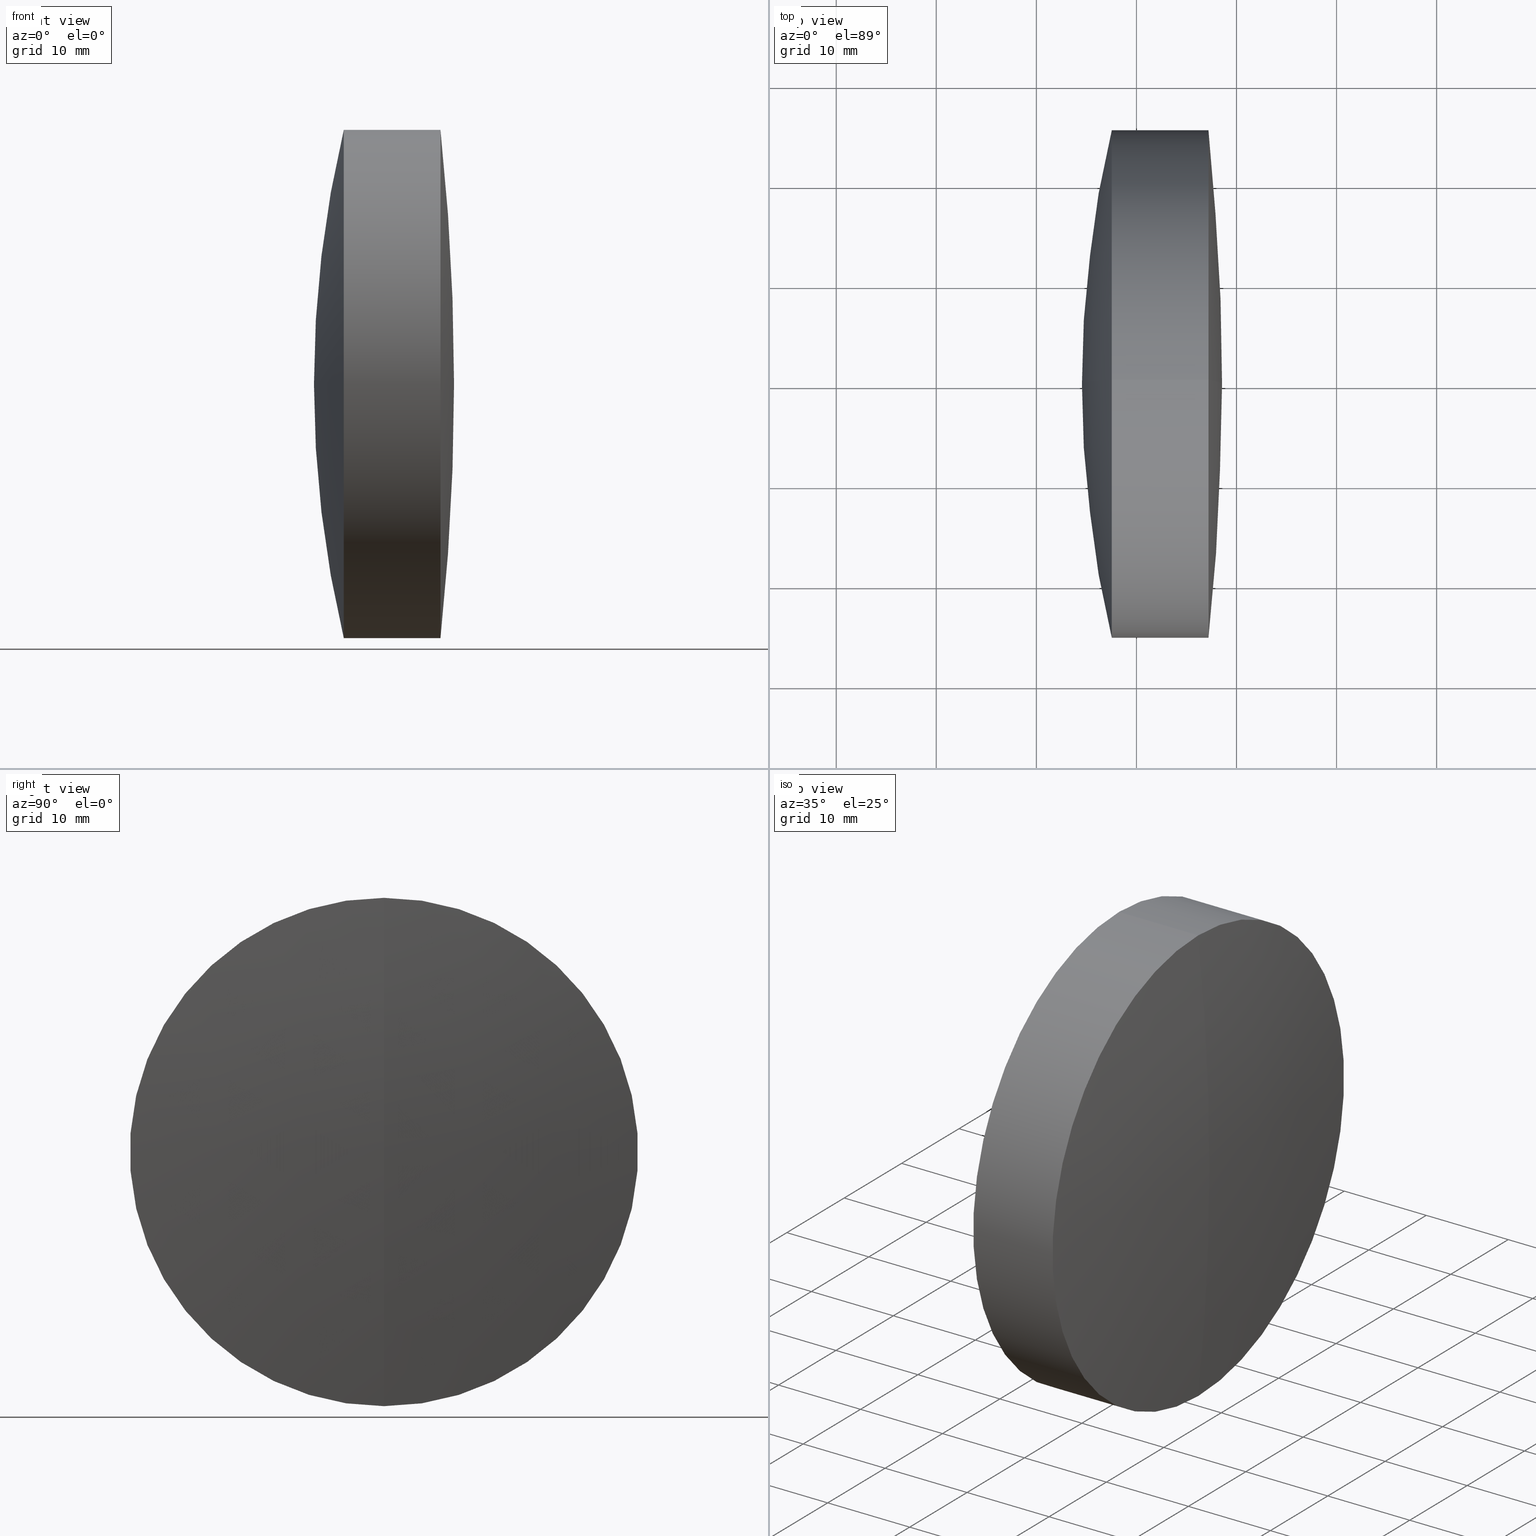
[diagram: canonical four-view strip — front | top / right | iso, engineering-drawing reading convention]
A machine part, canonical four-view strip (front | top / right | iso — engineering-drawing reading convention). The complete STEP part file that produces these views, byte-faithful:
ISO-10303-21;
HEADER;
FILE_DESCRIPTION (( 'STEP AP214' ),
    '1' );
FILE_NAME ('145088.STEP',
    '2019-05-24T07:16:58',
    ( '' ),
    ( '' ),
    'SwSTEP 2.0',
    'SolidWorks 2016',
    '' );
FILE_SCHEMA (( 'AUTOMOTIVE_DESIGN' ));
ENDSEC;

DATA;
#1 = FILL_AREA_STYLE_COLOUR ( '', #106 ) ;
#2 = EDGE_CURVE ( 'NONE', #138, #72, #207, .T. ) ;
#3 =( NAMED_UNIT ( * ) SI_UNIT ( $, .STERADIAN. ) SOLID_ANGLE_UNIT ( ) );
#4 = STYLED_ITEM ( 'NONE', ( #212 ), #173 ) ;
#5 = EDGE_LOOP ( 'NONE', ( #232, #291, #267, #167 ) ) ;
#6 = SPHERICAL_SURFACE ( 'NONE', #252, 80.70000000000001700 ) ;
#7 = DIRECTION ( 'NONE',  ( 0.0000000000000000000, 0.0000000000000000000, 1.000000000000000000 ) ) ;
#8 = PRESENTATION_LAYER_ASSIGNMENT (  '', '', ( #296 ) ) ;
#9 = CLOSED_SHELL ( 'NONE', ( #206, #253, #335, #148, #83, #275 ) ) ;
#10 = PRESENTATION_STYLE_ASSIGNMENT (( #145 ) ) ;
#11 = ORIENTED_EDGE ( 'NONE', *, *, #113, .F. ) ;
#12 = ADVANCED_FACE ( 'NONE', ( #281 ), #338, .T. ) ;
#13 = ORIENTED_EDGE ( 'NONE', *, *, #343, .F. ) ;
#14 = CARTESIAN_POINT ( 'NONE',  ( 265.8574619542142200, 0.0000000000000000000, 2.168404344971008900E-016 ) ) ;
#15 = CARTESIAN_POINT ( 'NONE',  ( 265.8574619542142200, 0.0000000000000000000, 2.168404344971008900E-016 ) ) ;
#16 = EDGE_CURVE ( 'NONE', #259, #156, #198, .T. ) ;
#17 = EDGE_LOOP ( 'NONE', ( #120, #334, #248 ) ) ;
#18 =( NAMED_UNIT ( * ) PLANE_ANGLE_UNIT ( ) SI_UNIT ( $, .RADIAN. ) );
#19 = DIRECTION ( 'NONE',  ( 0.0000000000000000000, 0.0000000000000000000, 1.000000000000000000 ) ) ;
#20 = DIRECTION ( 'NONE',  ( 0.0000000000000000000, 0.0000000000000000000, 1.000000000000000000 ) ) ;
#21 =( GEOMETRIC_REPRESENTATION_CONTEXT ( 3 ) GLOBAL_UNCERTAINTY_ASSIGNED_CONTEXT ( ( #301 ) ) GLOBAL_UNIT_ASSIGNED_CONTEXT ( ( #295, #18, #97 ) ) REPRESENTATION_CONTEXT ( 'NONE', 'WORKASPACE' ) );
#22 = CLOSED_SHELL ( 'NONE', ( #303, #280, #333, #230, #12, #144 ) ) ;
#23 = DIRECTION ( 'NONE',  ( -1.000000000000000000, -0.0000000000000000000, -0.0000000000000000000 ) ) ;
#24 = SURFACE_SIDE_STYLE ('',( #25 ) ) ;
#25 = SURFACE_STYLE_FILL_AREA ( #197 ) ;
#26 = AXIS2_PLACEMENT_3D ( 'NONE', #111, #84, #236 ) ;
#27 =( NAMED_UNIT ( * ) SI_UNIT ( $, .STERADIAN. ) SOLID_ANGLE_UNIT ( ) );
#28 = MECHANICAL_DESIGN_GEOMETRIC_PRESENTATION_REPRESENTATION (  '', ( #296 ), #21 ) ;
#29 =( NAMED_UNIT ( * ) PLANE_ANGLE_UNIT ( ) SI_UNIT ( $, .RADIAN. ) );
#30 = ORIENTED_EDGE ( 'NONE', *, *, #16, .T. ) ;
#31 = SURFACE_STYLE_FILL_AREA ( #184 ) ;
#32 = CARTESIAN_POINT ( 'NONE',  ( 348.5574619542142000, 0.0000000000000000000, 1.460391307983218500E-014 ) ) ;
#33 = FILL_AREA_STYLE_COLOUR ( '', #52 ) ;
#34 = EDGE_LOOP ( 'NONE', ( #342, #299, #287 ) ) ;
#35 = SPHERICAL_SURFACE ( 'NONE', #187, 80.70000000000001700 ) ;
#36 = AXIS2_PLACEMENT_3D ( 'NONE', #14, #37, #217 ) ;
#37 = DIRECTION ( 'NONE',  ( 0.0000000000000000000, 1.000000000000000000, 0.0000000000000000000 ) ) ;
#38 = ORIENTED_EDGE ( 'NONE', *, *, #215, .T. ) ;
#39 = DIRECTION ( 'NONE',  ( 0.0000000000000000000, 0.0000000000000000000, 1.000000000000000000 ) ) ;
#40 = UNCERTAINTY_MEASURE_WITH_UNIT (LENGTH_MEASURE( 1.000000000000000100E-005 ), #135, 'distance_accuracy_value', 'NONE');
#41 = CARTESIAN_POINT ( 'NONE',  ( 265.8574619542142200, 0.0000000000000000000, 2.168404344971008900E-016 ) ) ;
#42 = SURFACE_STYLE_FILL_AREA ( #254 ) ;
#43 = DIRECTION ( 'NONE',  ( 0.0000000000000000000, -1.000000000000000000, 0.0000000000000000000 ) ) ;
#44 =( GEOMETRIC_REPRESENTATION_CONTEXT ( 3 ) GLOBAL_UNCERTAINTY_ASSIGNED_CONTEXT ( ( #40 ) ) GLOBAL_UNIT_ASSIGNED_CONTEXT ( ( #135, #328, #3 ) ) REPRESENTATION_CONTEXT ( 'NONE', 'WORKASPACE' ) );
#45 = CARTESIAN_POINT ( 'NONE',  ( 110.0574619542142300, 0.0000000000000000000, 0.0000000000000000000 ) ) ;
#46 = DIRECTION ( 'NONE',  ( 0.0000000000000000000, -1.224646799147353500E-016, 1.000000000000000000 ) ) ;
#47 = ORIENTED_EDGE ( 'NONE', *, *, #163, .T. ) ;
#48 = PRESENTATION_LAYER_ASSIGNMENT (  '', '', ( #305 ) ) ;
#49 = PRODUCT_CONTEXT ( 'NONE', #274, 'mechanical' ) ;
#50 = CIRCLE ( 'NONE', #180, 25.39999999999994900 ) ;
#51 = DIRECTION ( 'NONE',  ( -1.000000000000000000, -0.0000000000000000000, -0.0000000000000000000 ) ) ;
#52 = COLOUR_RGB ( '',1.000000000000000000, 1.000000000000000000, 1.000000000000000000 ) ;
#53 = PRESENTATION_LAYER_ASSIGNMENT (  '', '', ( #4 ) ) ;
#54 = DIRECTION ( 'NONE',  ( 0.0000000000000000000, 0.0000000000000000000, 1.000000000000000000 ) ) ;
#55 = AXIS2_PLACEMENT_3D ( 'NONE', #347, #324, #190 ) ;
#56 = CARTESIAN_POINT ( 'NONE',  ( -0.5519199926577972300, 0.0000000000000000000, 0.0000000000000000000 ) ) ;
#57 = ORIENTED_EDGE ( 'NONE', *, *, #199, .F. ) ;
#58 = DIRECTION ( 'NONE',  ( 0.0000000000000000000, -1.000000000000000000, 0.0000000000000000000 ) ) ;
#59 = CARTESIAN_POINT ( 'NONE',  ( 110.0574619542142300, 0.0000000000000000000, 0.0000000000000000000 ) ) ;
#60 = CARTESIAN_POINT ( 'NONE',  ( 342.4559606340186500, 0.0000000000000000000, 25.39999999999999500 ) ) ;
#61 = CIRCLE ( 'NONE', #168, 109.7000000000000300 ) ;
#62 = ORIENTED_EDGE ( 'NONE', *, *, #2, .F. ) ;
#63 = CARTESIAN_POINT ( 'NONE',  ( 110.0574619542142300, 0.0000000000000000000, 0.0000000000000000000 ) ) ;
#64 = DIRECTION ( 'NONE',  ( 0.0000000000000000000, -1.224646799147353200E-016, 1.000000000000000000 ) ) ;
#65 = EDGE_LOOP ( 'NONE', ( #38, #151, #62, #219 ) ) ;
#66 = CIRCLE ( 'NONE', #157, 25.40000000000002700 ) ;
#67 = DIRECTION ( 'NONE',  ( 0.0000000000000000000, 1.000000000000000000, 0.0000000000000000000 ) ) ;
#68 = CARTESIAN_POINT ( 'NONE',  ( 337.5385320495342400, 3.110602869834276900E-015, -25.40000000000000600 ) ) ;
#69 = DIRECTION ( 'NONE',  ( 0.0000000000000000000, 0.0000000000000000000, -1.000000000000000000 ) ) ;
#70 = AXIS2_PLACEMENT_3D ( 'NONE', #161, #297, #243 ) ;
#71 = DIRECTION ( 'NONE',  ( 0.0000000000000000000, 0.0000000000000000000, 1.000000000000000000 ) ) ;
#72 = VERTEX_POINT ( 'NONE', #132 ) ;
#73 = CIRCLE ( 'NONE', #75, 80.70000000000001700 ) ;
#74 =( GEOMETRIC_REPRESENTATION_CONTEXT ( 3 ) GLOBAL_UNCERTAINTY_ASSIGNED_CONTEXT ( ( #240 ) ) GLOBAL_UNIT_ASSIGNED_CONTEXT ( ( #105, #194, #27 ) ) REPRESENTATION_CONTEXT ( 'NONE', 'WORKASPACE' ) );
#75 = AXIS2_PLACEMENT_3D ( 'NONE', #15, #318, #216 ) ;
#76 = EDGE_LOOP ( 'NONE', ( #307, #277, #223 ) ) ;
#77 = FACE_OUTER_BOUND ( 'NONE', #304, .T. ) ;
#78 = CYLINDRICAL_SURFACE ( 'NONE', #276, 25.39999999999999500 ) ;
#79 = ORIENTED_EDGE ( 'NONE', *, *, #298, .T. ) ;
#80 = MECHANICAL_DESIGN_GEOMETRIC_PRESENTATION_REPRESENTATION (  '', ( #305 ), #95 ) ;
#81 = ORIENTED_EDGE ( 'NONE', *, *, #189, .F. ) ;
#82 = VECTOR ( 'NONE', #150, 1000.000000000000000 ) ;
#83 = ADVANCED_FACE ( 'NONE', ( #345 ), #238, .T. ) ;
#84 = DIRECTION ( 'NONE',  ( -1.000000000000000000, -0.0000000000000000000, -0.0000000000000000000 ) ) ;
#85 = DIRECTION ( 'NONE',  ( -1.000000000000000000, -0.0000000000000000000, -0.0000000000000000000 ) ) ;
#86 = VECTOR ( 'NONE', #51, 1000.000000000000000 ) ;
#87 = VERTEX_POINT ( 'NONE', #32 ) ;
#88 = CYLINDRICAL_SURFACE ( 'NONE', #203, 25.39999999999998800 ) ;
#89 = AXIS2_PLACEMENT_3D ( 'NONE', #292, #43, #69 ) ;
#90 = DIRECTION ( 'NONE',  ( 0.0000000000000000000, 0.0000000000000000000, 1.000000000000000000 ) ) ;
#91 = CARTESIAN_POINT ( 'NONE',  ( 347.2010682353029000, 0.0000000000000000000, 25.39999999999994900 ) ) ;
#92 = DIRECTION ( 'NONE',  ( 0.0000000000000000000, 0.0000000000000000000, 1.000000000000000000 ) ) ;
#93 = EDGE_LOOP ( 'NONE', ( #255, #79, #118 ) ) ;
#94 = PRESENTATION_STYLE_ASSIGNMENT (( #100 ) ) ;
#95 =( GEOMETRIC_REPRESENTATION_CONTEXT ( 3 ) GLOBAL_UNCERTAINTY_ASSIGNED_CONTEXT ( ( #205 ) ) GLOBAL_UNIT_ASSIGNED_CONTEXT ( ( #202, #29, #231 ) ) REPRESENTATION_CONTEXT ( 'NONE', 'WORKASPACE' ) );
#96 = DIRECTION ( 'NONE',  ( -1.000000000000000000, -0.0000000000000000000, -0.0000000000000000000 ) ) ;
#97 =( NAMED_UNIT ( * ) SI_UNIT ( $, .STERADIAN. ) SOLID_ANGLE_UNIT ( ) );
#98 = ORIENTED_EDGE ( 'NONE', *, *, #133, .F. ) ;
#99 = COLOUR_RGB ( '',1.000000000000000000, 1.000000000000000000, 1.000000000000000000 ) ;
#100 = SURFACE_STYLE_USAGE ( .BOTH. , #103 ) ;
#101 = PRODUCT_DEFINITION_FORMATION_WITH_SPECIFIED_SOURCE ( '�κ�', '', #332, .NOT_KNOWN. ) ;
#102 = DIRECTION ( 'NONE',  ( -0.0000000000000000000, 1.000000000000000000, 1.224646799147353200E-016 ) ) ;
#103 = SURFACE_SIDE_STYLE ('',( #31 ) ) ;
#104 = AXIS2_PLACEMENT_3D ( 'NONE', #166, #234, #172 ) ;
#105 =( LENGTH_UNIT ( ) NAMED_UNIT ( * ) SI_UNIT ( .MILLI., .METRE. ) );
#106 = COLOUR_RGB ( '',1.000000000000000000, 1.000000000000000000, 1.000000000000000000 ) ;
#107 = DIRECTION ( 'NONE',  ( 0.0000000000000000000, -1.224646799147353200E-016, 1.000000000000000000 ) ) ;
#108 = EDGE_CURVE ( 'NONE', #251, #321, #186, .T. ) ;
#109 = MANIFOLD_SOLID_BREP ( '��ת3', #9 ) ;
#110 = APPLICATION_PROTOCOL_DEFINITION ( 'draft international standard', 'automotive_design', 1998, #225 ) ;
#111 = CARTESIAN_POINT ( 'NONE',  ( 124.5233095260452400, 0.0000000000000000000, 0.0000000000000000000 ) ) ;
#112 = ORIENTED_EDGE ( 'NONE', *, *, #183, .T. ) ;
#113 = EDGE_CURVE ( 'NONE', #72, #138, #66, .T. ) ;
#114 = FACE_OUTER_BOUND ( 'NONE', #34, .T. ) ;
#115 = EDGE_LOOP ( 'NONE', ( #200, #294, #182, #175 ) ) ;
#116 = SPHERICAL_SURFACE ( 'NONE', #289, 109.7000000000000300 ) ;
#117 = EDGE_CURVE ( 'NONE', #156, #331, #228, .T. ) ;
#118 = ORIENTED_EDGE ( 'NONE', *, *, #279, .T. ) ;
#119 = CARTESIAN_POINT ( 'NONE',  ( 124.5233095260452400, 3.110602869834276500E-015, -25.39999999999999500 ) ) ;
#120 = ORIENTED_EDGE ( 'NONE', *, *, #247, .F. ) ;
#121 = SURFACE_SIDE_STYLE ('',( #42 ) ) ;
#122 = DIRECTION ( 'NONE',  ( 0.0000000000000000000, 1.000000000000000000, 0.0000000000000000000 ) ) ;
#123 = CARTESIAN_POINT ( 'NONE',  ( 347.2010682353029000, 3.110602869834273700E-015, -25.39999999999994900 ) ) ;
#124 = ORIENTED_EDGE ( 'NONE', *, *, #183, .F. ) ;
#125 = FACE_OUTER_BOUND ( 'NONE', #65, .T. ) ;
#126 = CARTESIAN_POINT ( 'NONE',  ( 265.8574619542142200, 0.0000000000000000000, 2.168404344971008900E-016 ) ) ;
#127 = CARTESIAN_POINT ( 'NONE',  ( 124.5233095260452400, 0.0000000000000000000, 0.0000000000000000000 ) ) ;
#128 = DIRECTION ( 'NONE',  ( 0.0000000000000000000, 0.0000000000000000000, 1.000000000000000000 ) ) ;
#129 = AXIS2_PLACEMENT_3D ( 'NONE', #45, #67, #71 ) ;
#130 = ORIENTED_EDGE ( 'NONE', *, *, #189, .T. ) ;
#131 = LINE ( 'NONE', #258, #82 ) ;
#132 = CARTESIAN_POINT ( 'NONE',  ( 342.4559606340186500, 3.110602869834278400E-015, -25.40000000000000900 ) ) ;
#133 = EDGE_CURVE ( 'NONE', #259, #251, #73, .T. ) ;
#134 = MECHANICAL_DESIGN_GEOMETRIC_PRESENTATION_REPRESENTATION (  '', ( #4 ), #44 ) ;
#135 =( LENGTH_UNIT ( ) NAMED_UNIT ( * ) SI_UNIT ( .MILLI., .METRE. ) );
#136 = SURFACE_STYLE_USAGE ( .BOTH. , #24 ) ;
#137 = DIRECTION ( 'NONE',  ( 1.000000000000000000, 0.0000000000000000000, 0.0000000000000000000 ) ) ;
#138 = VERTEX_POINT ( 'NONE', #309 ) ;
#139 = FILL_AREA_STYLE_COLOUR ( '', #99 ) ;
#140 = APPLICATION_PROTOCOL_DEFINITION ( 'draft international standard', 'automotive_design', 1998, #274 ) ;
#141 = LINE ( 'NONE', #302, #86 ) ;
#142 = EDGE_LOOP ( 'NONE', ( #170, #273, #314 ) ) ;
#143 = AXIS2_PLACEMENT_3D ( 'NONE', #153, #341, #256 ) ;
#144 = ADVANCED_FACE ( 'NONE', ( #77 ), #6, .T. ) ;
#145 = SURFACE_STYLE_USAGE ( .BOTH. , #121 ) ;
#146 = VERTEX_POINT ( 'NONE', #155 ) ;
#147 = VECTOR ( 'NONE', #85, 1000.000000000000000 ) ;
#148 = ADVANCED_FACE ( 'NONE', ( #165 ), #260, .F. ) ;
#149 = AXIS2_PLACEMENT_3D ( 'NONE', #246, #7, #137 ) ;
#150 = DIRECTION ( 'NONE',  ( -1.000000000000000000, -0.0000000000000000000, -0.0000000000000000000 ) ) ;
#151 = ORIENTED_EDGE ( 'NONE', *, *, #343, .T. ) ;
#152 = VECTOR ( 'NONE', #239, 1000.000000000000000 ) ;
#153 = CARTESIAN_POINT ( 'NONE',  ( 110.0574619542142300, 0.0000000000000000000, 0.0000000000000000000 ) ) ;
#154 = CARTESIAN_POINT ( 'NONE',  ( 342.4559606340186500, 3.110602869834276500E-015, -25.39999999999999500 ) ) ;
#155 = CARTESIAN_POINT ( 'NONE',  ( 334.5574619542142000, 0.0000000000000000000, 3.451904973311803600E-015 ) ) ;
#156 = VERTEX_POINT ( 'NONE', #60 ) ;
#157 = AXIS2_PLACEMENT_3D ( 'NONE', #214, #178, #177 ) ;
#158 = DIRECTION ( 'NONE',  ( -1.000000000000000000, -0.0000000000000000000, -0.0000000000000000000 ) ) ;
#159 = DIRECTION ( 'NONE',  ( 0.0000000000000000000, 1.000000000000000000, 0.0000000000000000000 ) ) ;
#160 = CARTESIAN_POINT ( 'NONE',  ( 265.8574619542142200, 0.0000000000000000000, 2.168404344971008900E-016 ) ) ;
#161 = CARTESIAN_POINT ( 'NONE',  ( 265.8574619542142200, 0.0000000000000000000, 2.168404344971008900E-016 ) ) ;
#162 = DIRECTION ( 'NONE',  ( 0.0000000000000000000, 0.0000000000000000000, 1.000000000000000000 ) ) ;
#163 = EDGE_CURVE ( 'NONE', #242, #138, #131, .T. ) ;
#164 = DIRECTION ( 'NONE',  ( 0.0000000000000000000, 1.000000000000000000, 0.0000000000000000000 ) ) ;
#165 = FACE_OUTER_BOUND ( 'NONE', #17, .T. ) ;
#166 = CARTESIAN_POINT ( 'NONE',  ( 342.4559606340186500, 0.0000000000000000000, 0.0000000000000000000 ) ) ;
#167 = ORIENTED_EDGE ( 'NONE', *, *, #298, .F. ) ;
#168 = AXIS2_PLACEMENT_3D ( 'NONE', #327, #329, #107 ) ;
#169 = CIRCLE ( 'NONE', #89, 109.7000000000000300 ) ;
#170 = ORIENTED_EDGE ( 'NONE', *, *, #266, .T. ) ;
#171 = CIRCLE ( 'NONE', #249, 25.39999999999999500 ) ;
#172 = DIRECTION ( 'NONE',  ( 0.0000000000000000000, 0.0000000000000000000, 1.000000000000000000 ) ) ;
#173 = ADVANCED_BREP_SHAPE_REPRESENTATION ( '145088', ( #264, #109, #149 ), #74 ) ;
#174 = DIRECTION ( 'NONE',  ( -1.000000000000000000, -0.0000000000000000000, -0.0000000000000000000 ) ) ;
#175 = ORIENTED_EDGE ( 'NONE', *, *, #117, .F. ) ;
#176 = EDGE_LOOP ( 'NONE', ( #81, #112, #192 ) ) ;
#177 = DIRECTION ( 'NONE',  ( 0.0000000000000000000, 0.0000000000000000000, 1.000000000000000000 ) ) ;
#178 = DIRECTION ( 'NONE',  ( -1.000000000000000000, -0.0000000000000000000, -0.0000000000000000000 ) ) ;
#179 = CARTESIAN_POINT ( 'NONE',  ( 342.4559606340186500, 0.0000000000000000000, 0.0000000000000000000 ) ) ;
#180 = AXIS2_PLACEMENT_3D ( 'NONE', #340, #211, #92 ) ;
#181 = CARTESIAN_POINT ( 'NONE',  ( 342.4559606340186500, 0.0000000000000000000, 0.0000000000000000000 ) ) ;
#182 = ORIENTED_EDGE ( 'NONE', *, *, #266, .F. ) ;
#183 = EDGE_CURVE ( 'NONE', #87, #224, #278, .T. ) ;
#184 = FILL_AREA_STYLE ('',( #1 ) ) ;
#185 = DIRECTION ( 'NONE',  ( -1.000000000000000000, -0.0000000000000000000, -0.0000000000000000000 ) ) ;
#186 = LINE ( 'NONE', #119, #147 ) ;
#187 = AXIS2_PLACEMENT_3D ( 'NONE', #330, #272, #54 ) ;
#188 = CARTESIAN_POINT ( 'NONE',  ( 337.5385320495342400, 0.0000000000000000000, 25.39999999999999900 ) ) ;
#189 = EDGE_CURVE ( 'NONE', #87, #242, #201, .T. ) ;
#190 = DIRECTION ( 'NONE',  ( 0.0000000000000000000, 0.0000000000000000000, 1.000000000000000000 ) ) ;
#191 = FACE_OUTER_BOUND ( 'NONE', #142, .T. ) ;
#192 = ORIENTED_EDGE ( 'NONE', *, *, #215, .F. ) ;
#193 = SPHERICAL_SURFACE ( 'NONE', #257, 238.4999999999999700 ) ;
#194 =( NAMED_UNIT ( * ) PLANE_ANGLE_UNIT ( ) SI_UNIT ( $, .RADIAN. ) );
#195 = CARTESIAN_POINT ( 'NONE',  ( 444.2574619542142500, 0.0000000000000000000, -3.265282720011431000E-015 ) ) ;
#196 = AXIS2_PLACEMENT_3D ( 'NONE', #56, #174, #284 ) ;
#197 = FILL_AREA_STYLE ('',( #139 ) ) ;
#198 = CIRCLE ( 'NONE', #220, 80.70000000000001700 ) ;
#199 = EDGE_CURVE ( 'NONE', #251, #156, #300, .T. ) ;
#200 = ORIENTED_EDGE ( 'NONE', *, *, #244, .T. ) ;
#201 = CIRCLE ( 'NONE', #143, 238.4999999999999700 ) ;
#202 =( LENGTH_UNIT ( ) NAMED_UNIT ( * ) SI_UNIT ( .MILLI., .METRE. ) );
#203 = AXIS2_PLACEMENT_3D ( 'NONE', #320, #96, #346 ) ;
#204 = DIRECTION ( 'NONE',  ( 0.0000000000000000000, 0.0000000000000000000, -1.000000000000000000 ) ) ;
#205 = UNCERTAINTY_MEASURE_WITH_UNIT (LENGTH_MEASURE( 1.000000000000000100E-005 ), #202, 'distance_accuracy_value', 'NONE');
#206 = ADVANCED_FACE ( 'NONE', ( #282 ), #193, .T. ) ;
#207 = CIRCLE ( 'NONE', #104, 25.40000000000002700 ) ;
#208 = CARTESIAN_POINT ( 'NONE',  ( 265.8574619542142200, 0.0000000000000000000, 2.168404344971008900E-016 ) ) ;
#209 = SHAPE_DEFINITION_REPRESENTATION ( #344, #173 ) ;
#210 = PRODUCT_RELATED_PRODUCT_CATEGORY ( 'part', '', ( #332 ) ) ;
#211 = DIRECTION ( 'NONE',  ( -1.000000000000000000, -0.0000000000000000000, -0.0000000000000000000 ) ) ;
#212 = PRESENTATION_STYLE_ASSIGNMENT (( #136 ) ) ;
#213 = EDGE_LOOP ( 'NONE', ( #124, #130, #326 ) ) ;
#214 = CARTESIAN_POINT ( 'NONE',  ( 342.4559606340186500, 0.0000000000000000000, 0.0000000000000000000 ) ) ;
#215 = EDGE_CURVE ( 'NONE', #242, #224, #50, .T. ) ;
#216 = DIRECTION ( 'NONE',  ( 0.0000000000000000000, -1.224646799147353500E-016, 1.000000000000000000 ) ) ;
#217 = DIRECTION ( 'NONE',  ( 0.0000000000000000000, 0.0000000000000000000, 1.000000000000000000 ) ) ;
#218 = AXIS2_PLACEMENT_3D ( 'NONE', #179, #262, #90 ) ;
#219 = ORIENTED_EDGE ( 'NONE', *, *, #163, .F. ) ;
#220 = AXIS2_PLACEMENT_3D ( 'NONE', #208, #58, #204 ) ;
#221 = CARTESIAN_POINT ( 'NONE',  ( 346.5574619542142000, 0.0000000000000000000, 5.158290269056672600E-015 ) ) ;
#222 = CIRCLE ( 'NONE', #55, 25.39999999999999500 ) ;
#223 = ORIENTED_EDGE ( 'NONE', *, *, #113, .T. ) ;
#224 = VERTEX_POINT ( 'NONE', #123 ) ;
#225 = APPLICATION_CONTEXT ( 'automotive_design' ) ;
#226 = SPHERICAL_SURFACE ( 'NONE', #229, 80.70000000000001700 ) ;
#227 = EDGE_LOOP ( 'NONE', ( #13, #245, #47, #11 ) ) ;
#228 = LINE ( 'NONE', #288, #152 ) ;
#229 = AXIS2_PLACEMENT_3D ( 'NONE', #160, #159, #20 ) ;
#230 = ADVANCED_FACE ( 'NONE', ( #233 ), #116, .T. ) ;
#231 =( NAMED_UNIT ( * ) SI_UNIT ( $, .STERADIAN. ) SOLID_ANGLE_UNIT ( ) );
#232 = ORIENTED_EDGE ( 'NONE', *, *, #108, .F. ) ;
#233 = FACE_OUTER_BOUND ( 'NONE', #93, .T. ) ;
#234 = DIRECTION ( 'NONE',  ( -1.000000000000000000, -0.0000000000000000000, -0.0000000000000000000 ) ) ;
#235 = AXIS2_PLACEMENT_3D ( 'NONE', #59, #290, #64 ) ;
#236 = DIRECTION ( 'NONE',  ( 0.0000000000000000000, 0.0000000000000000000, 1.000000000000000000 ) ) ;
#237 = FACE_OUTER_BOUND ( 'NONE', #76, .T. ) ;
#238 = CYLINDRICAL_SURFACE ( 'NONE', #196, 25.39999999999998800 ) ;
#239 = DIRECTION ( 'NONE',  ( -1.000000000000000000, -0.0000000000000000000, -0.0000000000000000000 ) ) ;
#240 = UNCERTAINTY_MEASURE_WITH_UNIT (LENGTH_MEASURE( 1.000000000000000100E-005 ), #105, 'distance_accuracy_value', 'NONE');
#241 = CARTESIAN_POINT ( 'NONE',  ( 346.5574619542142000, 0.0000000000000000000, 5.158290269056672600E-015 ) ) ;
#242 = VERTEX_POINT ( 'NONE', #91 ) ;
#243 = DIRECTION ( 'NONE',  ( 0.0000000000000000000, 0.0000000000000000000, -1.000000000000000000 ) ) ;
#244 = EDGE_CURVE ( 'NONE', #156, #251, #171, .T. ) ;
#245 = ORIENTED_EDGE ( 'NONE', *, *, #261, .T. ) ;
#246 = CARTESIAN_POINT ( 'NONE',  ( 0.0000000000000000000, 0.0000000000000000000, 0.0000000000000000000 ) ) ;
#247 = EDGE_CURVE ( 'NONE', #336, #72, #337, .T. ) ;
#248 = ORIENTED_EDGE ( 'NONE', *, *, #2, .T. ) ;
#249 = AXIS2_PLACEMENT_3D ( 'NONE', #181, #23, #128 ) ;
#250 = SPHERICAL_SURFACE ( 'NONE', #263, 109.7000000000000300 ) ;
#251 = VERTEX_POINT ( 'NONE', #154 ) ;
#252 = AXIS2_PLACEMENT_3D ( 'NONE', #126, #311, #39 ) ;
#253 = ADVANCED_FACE ( 'NONE', ( #125 ), #88, .T. ) ;
#254 = FILL_AREA_STYLE ('',( #33 ) ) ;
#255 = ORIENTED_EDGE ( 'NONE', *, *, #315, .F. ) ;
#256 = DIRECTION ( 'NONE',  ( 0.0000000000000000000, 0.0000000000000000000, -1.000000000000000000 ) ) ;
#257 = AXIS2_PLACEMENT_3D ( 'NONE', #63, #265, #285 ) ;
#258 = CARTESIAN_POINT ( 'NONE',  ( -0.5519199926577972300, 0.0000000000000000000, 25.39999999999998800 ) ) ;
#259 = VERTEX_POINT ( 'NONE', #221 ) ;
#260 = SPHERICAL_SURFACE ( 'NONE', #36, 80.70000000000001700 ) ;
#261 = EDGE_CURVE ( 'NONE', #224, #242, #316, .T. ) ;
#262 = DIRECTION ( 'NONE',  ( -1.000000000000000000, -0.0000000000000000000, -0.0000000000000000000 ) ) ;
#263 = AXIS2_PLACEMENT_3D ( 'NONE', #195, #164, #162 ) ;
#264 = MANIFOLD_SOLID_BREP ( '��ת1', #22 ) ;
#265 = DIRECTION ( 'NONE',  ( 0.0000000000000000000, 1.000000000000000000, 0.0000000000000000000 ) ) ;
#266 = EDGE_CURVE ( 'NONE', #331, #321, #222, .T. ) ;
#267 = ORIENTED_EDGE ( 'NONE', *, *, #117, .T. ) ;
#268 = DIRECTION ( 'NONE',  ( 0.0000000000000000000, 0.0000000000000000000, 1.000000000000000000 ) ) ;
#269 = EDGE_CURVE ( 'NONE', #336, #138, #286, .T. ) ;
#270 = DIRECTION ( 'NONE',  ( 0.0000000000000000000, 0.0000000000000000000, 1.000000000000000000 ) ) ;
#271 = FACE_OUTER_BOUND ( 'NONE', #115, .T. ) ;
#272 = DIRECTION ( 'NONE',  ( 0.0000000000000000000, 1.000000000000000000, 0.0000000000000000000 ) ) ;
#273 = ORIENTED_EDGE ( 'NONE', *, *, #315, .T. ) ;
#274 = APPLICATION_CONTEXT ( 'automotive_design' ) ;
#275 = ADVANCED_FACE ( 'NONE', ( #325 ), #313, .T. ) ;
#276 = AXIS2_PLACEMENT_3D ( 'NONE', #127, #185, #270 ) ;
#277 = ORIENTED_EDGE ( 'NONE', *, *, #247, .T. ) ;
#278 = CIRCLE ( 'NONE', #235, 238.4999999999999700 ) ;
#279 = EDGE_CURVE ( 'NONE', #331, #146, #169, .T. ) ;
#280 = ADVANCED_FACE ( 'NONE', ( #271 ), #78, .T. ) ;
#281 = FACE_OUTER_BOUND ( 'NONE', #5, .T. ) ;
#282 = FACE_OUTER_BOUND ( 'NONE', #176, .T. ) ;
#283 = AXIS2_PLACEMENT_3D ( 'NONE', #41, #102, #46 ) ;
#284 = DIRECTION ( 'NONE',  ( 0.0000000000000000000, 0.0000000000000000000, 1.000000000000000000 ) ) ;
#285 = DIRECTION ( 'NONE',  ( 0.0000000000000000000, 0.0000000000000000000, 1.000000000000000000 ) ) ;
#286 = CIRCLE ( 'NONE', #70, 80.70000000000001700 ) ;
#287 = ORIENTED_EDGE ( 'NONE', *, *, #244, .F. ) ;
#288 = CARTESIAN_POINT ( 'NONE',  ( 124.5233095260452400, 0.0000000000000000000, 25.39999999999999500 ) ) ;
#289 = AXIS2_PLACEMENT_3D ( 'NONE', #312, #122, #317 ) ;
#290 = DIRECTION ( 'NONE',  ( -0.0000000000000000000, 1.000000000000000000, 1.224646799147353200E-016 ) ) ;
#291 = ORIENTED_EDGE ( 'NONE', *, *, #199, .T. ) ;
#292 = CARTESIAN_POINT ( 'NONE',  ( 444.2574619542142500, 0.0000000000000000000, -3.265282720011431000E-015 ) ) ;
#293 = CIRCLE ( 'NONE', #310, 25.39999999999999500 ) ;
#294 = ORIENTED_EDGE ( 'NONE', *, *, #108, .T. ) ;
#295 =( LENGTH_UNIT ( ) NAMED_UNIT ( * ) SI_UNIT ( .MILLI., .METRE. ) );
#296 = STYLED_ITEM ( 'NONE', ( #94 ), #264 ) ;
#297 = DIRECTION ( 'NONE',  ( 0.0000000000000000000, -1.000000000000000000, 0.0000000000000000000 ) ) ;
#298 = EDGE_CURVE ( 'NONE', #321, #331, #293, .T. ) ;
#299 = ORIENTED_EDGE ( 'NONE', *, *, #133, .T. ) ;
#300 = CIRCLE ( 'NONE', #218, 25.39999999999999500 ) ;
#301 = UNCERTAINTY_MEASURE_WITH_UNIT (LENGTH_MEASURE( 1.000000000000000100E-005 ), #295, 'distance_accuracy_value', 'NONE');
#302 = CARTESIAN_POINT ( 'NONE',  ( -0.5519199926577972300, 3.110602869834276100E-015, -25.39999999999998800 ) ) ;
#303 = ADVANCED_FACE ( 'NONE', ( #114 ), #226, .T. ) ;
#304 = EDGE_LOOP ( 'NONE', ( #98, #30, #57 ) ) ;
#305 = STYLED_ITEM ( 'NONE', ( #10 ), #109 ) ;
#306 = PRODUCT_DEFINITION_CONTEXT ( 'detailed design', #225, 'design' ) ;
#307 = ORIENTED_EDGE ( 'NONE', *, *, #269, .F. ) ;
#308 = PRODUCT_DEFINITION ( 'δ֪', '', #101, #306 ) ;
#309 = CARTESIAN_POINT ( 'NONE',  ( 342.4559606340186500, 0.0000000000000000000, 25.40000000000000900 ) ) ;
#310 = AXIS2_PLACEMENT_3D ( 'NONE', #322, #319, #268 ) ;
#311 = DIRECTION ( 'NONE',  ( 0.0000000000000000000, 1.000000000000000000, 0.0000000000000000000 ) ) ;
#312 = CARTESIAN_POINT ( 'NONE',  ( 444.2574619542142500, 0.0000000000000000000, -3.265282720011431000E-015 ) ) ;
#313 = SPHERICAL_SURFACE ( 'NONE', #129, 238.4999999999999700 ) ;
#314 = ORIENTED_EDGE ( 'NONE', *, *, #279, .F. ) ;
#315 = EDGE_CURVE ( 'NONE', #321, #146, #61, .T. ) ;
#316 = CIRCLE ( 'NONE', #339, 25.39999999999994900 ) ;
#317 = DIRECTION ( 'NONE',  ( 0.0000000000000000000, 0.0000000000000000000, 1.000000000000000000 ) ) ;
#318 = DIRECTION ( 'NONE',  ( -0.0000000000000000000, 1.000000000000000000, 1.224646799147353200E-016 ) ) ;
#319 = DIRECTION ( 'NONE',  ( -1.000000000000000000, -0.0000000000000000000, -0.0000000000000000000 ) ) ;
#320 = CARTESIAN_POINT ( 'NONE',  ( -0.5519199926577972300, 0.0000000000000000000, 0.0000000000000000000 ) ) ;
#321 = VERTEX_POINT ( 'NONE', #68 ) ;
#322 = CARTESIAN_POINT ( 'NONE',  ( 337.5385320495342400, 0.0000000000000000000, 0.0000000000000000000 ) ) ;
#323 = CARTESIAN_POINT ( 'NONE',  ( 347.2010682353029000, 0.0000000000000000000, 0.0000000000000000000 ) ) ;
#324 = DIRECTION ( 'NONE',  ( -1.000000000000000000, -0.0000000000000000000, -0.0000000000000000000 ) ) ;
#325 = FACE_OUTER_BOUND ( 'NONE', #213, .T. ) ;
#326 = ORIENTED_EDGE ( 'NONE', *, *, #261, .F. ) ;
#327 = CARTESIAN_POINT ( 'NONE',  ( 444.2574619542142500, 0.0000000000000000000, -3.265282720011431000E-015 ) ) ;
#328 =( NAMED_UNIT ( * ) PLANE_ANGLE_UNIT ( ) SI_UNIT ( $, .RADIAN. ) );
#329 = DIRECTION ( 'NONE',  ( -0.0000000000000000000, 1.000000000000000000, 1.224646799147353200E-016 ) ) ;
#330 = CARTESIAN_POINT ( 'NONE',  ( 265.8574619542142200, 0.0000000000000000000, 2.168404344971008900E-016 ) ) ;
#331 = VERTEX_POINT ( 'NONE', #188 ) ;
#332 = PRODUCT ( '145088', '145088', '', ( #49 ) ) ;
#333 = ADVANCED_FACE ( 'NONE', ( #191 ), #250, .T. ) ;
#334 = ORIENTED_EDGE ( 'NONE', *, *, #269, .T. ) ;
#335 = ADVANCED_FACE ( 'NONE', ( #237 ), #35, .F. ) ;
#336 = VERTEX_POINT ( 'NONE', #241 ) ;
#337 = CIRCLE ( 'NONE', #283, 80.70000000000001700 ) ;
#338 = CYLINDRICAL_SURFACE ( 'NONE', #26, 25.39999999999999500 ) ;
#339 = AXIS2_PLACEMENT_3D ( 'NONE', #323, #158, #19 ) ;
#340 = CARTESIAN_POINT ( 'NONE',  ( 347.2010682353029000, 0.0000000000000000000, 0.0000000000000000000 ) ) ;
#341 = DIRECTION ( 'NONE',  ( 0.0000000000000000000, -1.000000000000000000, 0.0000000000000000000 ) ) ;
#342 = ORIENTED_EDGE ( 'NONE', *, *, #16, .F. ) ;
#343 = EDGE_CURVE ( 'NONE', #224, #72, #141, .T. ) ;
#344 = PRODUCT_DEFINITION_SHAPE ( 'NONE', 'NONE',  #308 ) ;
#345 = FACE_OUTER_BOUND ( 'NONE', #227, .T. ) ;
#346 = DIRECTION ( 'NONE',  ( 0.0000000000000000000, 0.0000000000000000000, 1.000000000000000000 ) ) ;
#347 = CARTESIAN_POINT ( 'NONE',  ( 337.5385320495342400, 0.0000000000000000000, 0.0000000000000000000 ) ) ;
ENDSEC;
END-ISO-10303-21;
